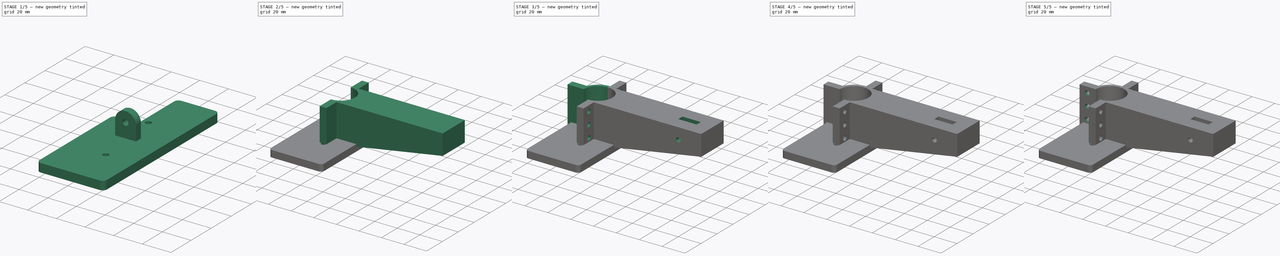
[diagram: build sequence overview — one tinted view per stage of 5, left to right]
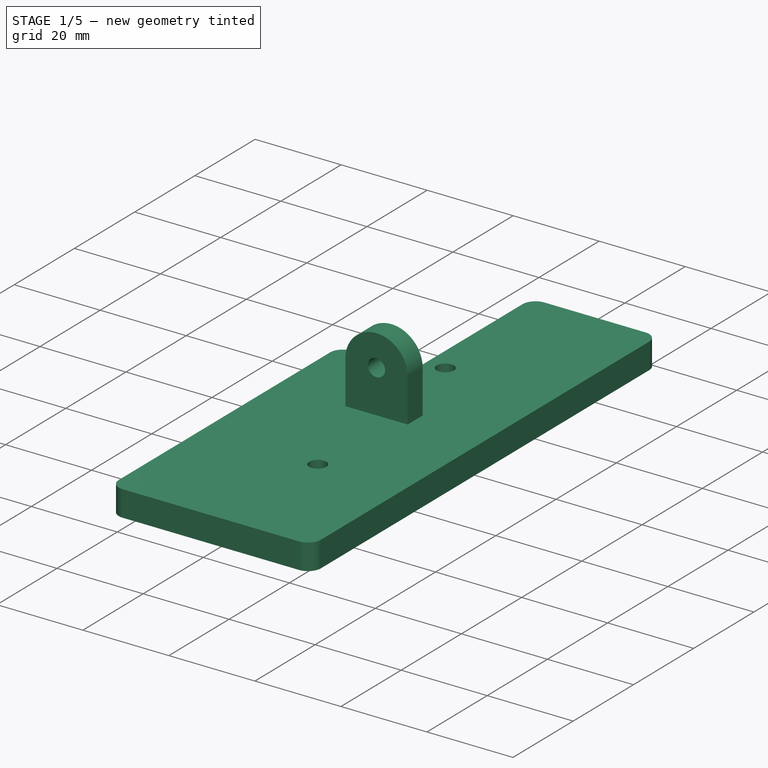
[diagram: stage 1 of 5 — iso view after this stage's code; geometry added in this stage tinted green]
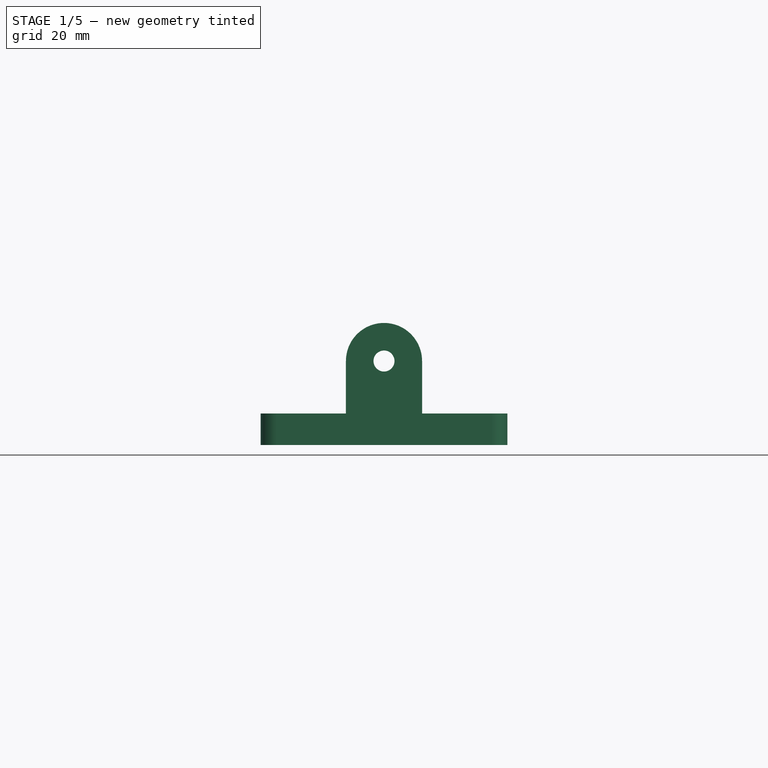
[diagram: stage 1 of 5 — front view after this stage's code; geometry added in this stage tinted green]
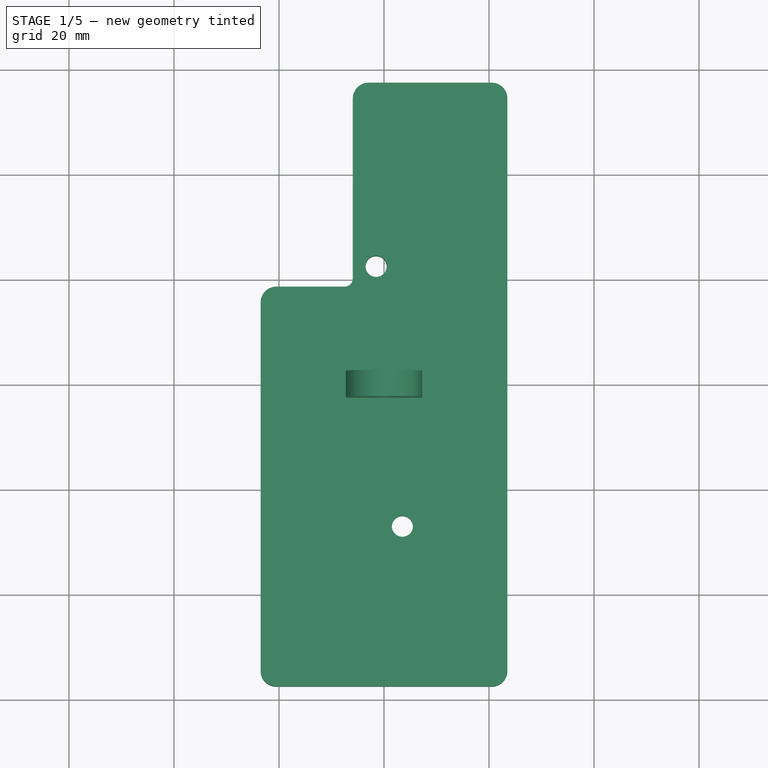
[diagram: stage 1 of 5 — top view after this stage's code; geometry added in this stage tinted green]
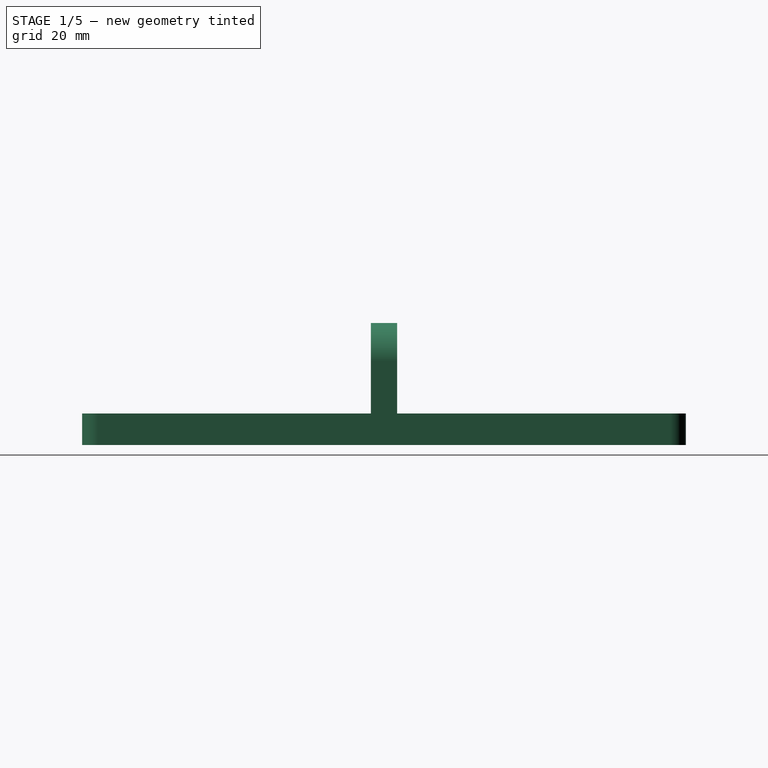
[diagram: stage 1 of 5 — right view after this stage's code; geometry added in this stage tinted green]
FCSTD DOCUMENT  (FreeCAD 0.20R29410 (Git))
Label: Kayak_Throttle_Mount_Version_3
License: All rights reserved
LicenseURL: http://en.wikipedia.org/wiki/All_rights_reserved
objects: PartDesign::Pocket×12, Sketcher::SketchObject×11, PartDesign::Body×4, PartDesign::Pad×4, PartDesign::CoordinateSystem×4, App::Part×3, PartDesign::LinearPattern×2, PartDesign::AdditiveLoft×1, PartDesign::Boolean×1, PartDesign::Fillet×1
note: 58 computed .brp shape members not serialized (recipe doc carries the construction recipe); baked Part::Feature solids carry a one-line shape summary decoded from their .brp

FEATURE [Sketcher::SketchObject] Sketch003
  FullyConstrained = true
  MapMode = 5
  Support = -> [XY_Plane004]
  sketch-geometry (10):
    g0: LineSegment StartX=-20.5 StartY=57.5 StartZ=0 EndX=20.5 EndY=57.5 EndZ=0
    g1: LineSegment StartX=23.5 StartY=54.5 StartZ=0 EndX=23.5 EndY=-54.5 EndZ=0
    g2: LineSegment StartX=20.5 StartY=-57.5 StartZ=0 EndX=-20.5 EndY=-57.5 EndZ=0
    g3: LineSegment StartX=-23.5 StartY=-54.5 StartZ=0 EndX=-23.5 EndY=54.5 EndZ=0
    g4: ArcOfCircle CenterX=-20.5 CenterY=54.5 CenterZ=0 NormalX=0 NormalY=0 NormalZ=1 AngleXU=0 Radius=3 StartAngle=1.5708 EndAngle=3.14159
    g5: ArcOfCircle CenterX=20.5 CenterY=54.5 CenterZ=0 NormalX=0 NormalY=0 NormalZ=1 AngleXU=0 Radius=3 StartAngle=0 EndAngle=1.5708
    g6: ArcOfCircle CenterX=20.5 CenterY=-54.5 CenterZ=0 NormalX=0 NormalY=0 NormalZ=1 AngleXU=0 Radius=3 StartAngle=4.71239 EndAngle=6.28319
    g7: ArcOfCircle CenterX=-20.5 CenterY=-54.5 CenterZ=0 NormalX=0 NormalY=0 NormalZ=1 AngleXU=0 Radius=3 StartAngle=3.14159 EndAngle=4.71239
    g8: Circle CenterX=-1.5 CenterY=22.5 CenterZ=0 NormalX=0 NormalY=0 NormalZ=1 AngleXU=0 Radius=2
    g9: Circle CenterX=3.5 CenterY=-27 CenterZ=0 NormalX=0 NormalY=0 NormalZ=1 AngleXU=0 Radius=2
  constraints (25):
    c: Horizontal(g0)
    c: Horizontal(g2)
    c: Vertical(g1)
    c: Vertical(g3)
    c: Tangent(g3,g4) = 1.5708
    c: Tangent(g0,g4) = 1.5708
    c: Tangent(g0,g5) = 1.5708
    c: Tangent(g1,g5) = 1.5708
    c: Tangent(g1,g6) = 1.5708
    c: Tangent(g2,g6) = 1.5708
    c: Tangent(g2,g7) = 1.5708
    c: Tangent(g3,g7) = 1.5708
    c: Equal(g4,g5)
    c: Equal(g5,g6)
    c: Equal(g6,g7)
    c: Radius(g5) = 3
    c: Symmetric(g0,g2,g-1)
    c: DistanceX(g3,g1) = 47
    c: DistanceY(g2,g0) = 115
    c: Radius(g9) = 2
    c: Radius(g8) = 2
    c: DistanceY(g9,g8) = 49.5
    c: DistanceX(g8,g1) = 25
    c: DistanceY(g2,g8) = 80
    c: DistanceX(g9,g1) = 20
FEATURE [PartDesign::Pad] Pad001
  Direction = (0,0,1)
  Length = 6
  Length2 = 10
  Profile = -> Sketch003
  ReferenceAxis = -> Sketch003 [N_Axis]
  Type = 0
FEATURE [Sketcher::SketchObject] Sketch004
  AttachmentOffset = pos=(0,6,0) rot=(0,0,1;3.14159rad)
  FullyConstrained = true
  MapMode = 5
  Placement = pos=(0,-1.3e-15,6) rot=(0,-0.707107,0.707107;3.14159rad)
  Support = -> [XZ_Plane004]
  sketch-geometry (5):
    g0: LineSegment StartX=-7.25 StartY=0 StartZ=0 EndX=-7.25 EndY=-10 EndZ=0
    g1: ArcOfCircle CenterX=0 CenterY=-10 CenterZ=0 NormalX=0 NormalY=0 NormalZ=1 AngleXU=0 Radius=7.25 StartAngle=3.14159 EndAngle=6.28319
    g2: LineSegment StartX=7.25 StartY=-10 StartZ=0 EndX=7.25 EndY=0 EndZ=0
    g3: LineSegment StartX=7.25 StartY=0 StartZ=0 EndX=-7.25 EndY=0 EndZ=0
    g4: Circle CenterX=0 CenterY=-10 CenterZ=0 NormalX=0 NormalY=0 NormalZ=1 AngleXU=0 Radius=2
  constraints (13):
    c: PointOnObject(g0,g-1)
    c: Vertical(g0)
    c: Tangent(g0,g1) = -1.5708
    c: Coincident(g1,g2)
    c: PointOnObject(g2,g-1)
    c: Vertical(g2)
    c: Coincident(g2,g3)
    c: Coincident(g3,g0)
    c: Symmetric(g0,g1,g-2)
    c: DistanceX(g0,g2) = 14.5
    c: DistanceY(g2,g2) = 10
    c: Coincident(g4,g1)
    c: Diameter(g4) = 4
FEATURE [PartDesign::Pad] Pad002
  BaseFeature = -> Pad001
  Direction = (0,-1,-2e-16)
  Length = 4.98
  Length2 = 10
  Midplane = true
  Profile = -> Sketch004
  ReferenceAxis = -> Sketch004 [N_Axis]
  Type = 0
FEATURE [PartDesign::Body] Body001  label="Body_Arm001"
  Group = -> [Sketch002,Pad,Boolean,Pocket,Sketch005,Pocket001,Sketch006,Pocket002,Sketch011,Pocket011,LinearPattern]
  Origin = -> Origin002
  Tip = -> LinearPattern
FEATURE [App::Part] Part  label="Part_Arm"
  Group = -> [Body001,LCS_Arm_Slot,LCS_Arm_Clamp]
  Origin = -> Origin
FEATURE [PartDesign::CoordinateSystem] LCS_Top_Plate
  AttacherType = Attacher::AttachEngine3D
  AttachmentOffset = pos=(0,0,0) rot=(0,1,0;1.5708rad)
  MapMode = 45
  Placement = pos=(-2.05769,-1.78329,16) rot=(0,0,1;4.40215rad)
  Support = -> [Pad002]
FEATURE [Sketcher::SketchObject] Sketch012
  AttachmentOffset = pos=(0,-1,0) rot=(0,0,1;0rad)
  FullyConstrained = false
  MapMode = 5
  Placement = pos=(0,-1,0) rot=(0,0,1;0rad)
  Support = -> [XY_Plane004]
  sketch-geometry (6):
    g0: LineSegment StartX=-25.37 StartY=59.32 StartZ=0 EndX=-5.94 EndY=59.32 EndZ=0
    g1: LineSegment StartX=-5.94 StartY=59.32 StartZ=0 EndX=-5.94 EndY=21.2071 EndZ=0
    g2: LineSegment StartX=-7.49707 StartY=19.65 StartZ=0 EndX=-23.59 EndY=19.65 EndZ=0
    g3: LineSegment StartX=-25.37 StartY=21.43 StartZ=0 EndX=-25.37 EndY=59.32 EndZ=0
    g4: ArcOfCircle CenterX=-23.59 CenterY=21.43 CenterZ=0 NormalX=0 NormalY=0 NormalZ=1 AngleXU=0 Radius=1.78 StartAngle=3.14159 EndAngle=4.71239
    g5: ArcOfCircle CenterX=-7.49707 CenterY=21.2071 CenterZ=0 NormalX=0 NormalY=0 NormalZ=1 AngleXU=0 Radius=1.55707 StartAngle=4.71239 EndAngle=6.28319
  constraints (12):
    c: Coincident(g0,g1)
    c: Coincident(g3,g0)
    c: Horizontal(g0)
    c: Horizontal(g2)
    c: Vertical(g1)
    c: Vertical(g3)
    c: DistanceX(g0,g0) = 19.43
    c: Tangent(g3,g4) = 1.5708
    c: Tangent(g2,g4) = 1.5708
    c: DistanceY(g3,g3) = 37.89
    c: Tangent(g2,g5) = 1.5708
    c: Tangent(g1,g5) = 1.5708
FEATURE [PartDesign::Pocket] Pocket012
  BaseFeature = -> Pad002
  Direction = (0,0,-1)
  Length = 6
  Length2 = 5
  Profile = -> Sketch012
  ReferenceAxis = -> Sketch012 [N_Axis]
  Reversed = true
  Type = 0
FEATURE [PartDesign::Fillet] Fillet
  Base = -> Pocket012 [Edge34,Edge2]
  BaseFeature = -> Pocket012
  Radius = 3
  SupportTransform = false
  UseAllEdges = false
FEATURE [PartDesign::Body] Body002  label="Body_Top_Plate"
  Group = -> [Sketch003,Pad001,Sketch004,Pad002,Sketch012,Pocket012,Fillet]
  Origin = -> Origin004
  Tip = -> Fillet
FEATURE [App::Part] Part001  label="Part_Top_Plate"
  Group = -> [Body002,LCS_Top_Plate]
  LabelDocUser = Kayak_Throttle_Mount
  LabelPartUser = PartTopPlate
  Origin = -> Origin003
  PadLengthUser = 5.0 
  ShapeLengthUser = 81.1239
  ShapeVolumeUser = 22.949 mm x 115.0 mm x 47.0 mm
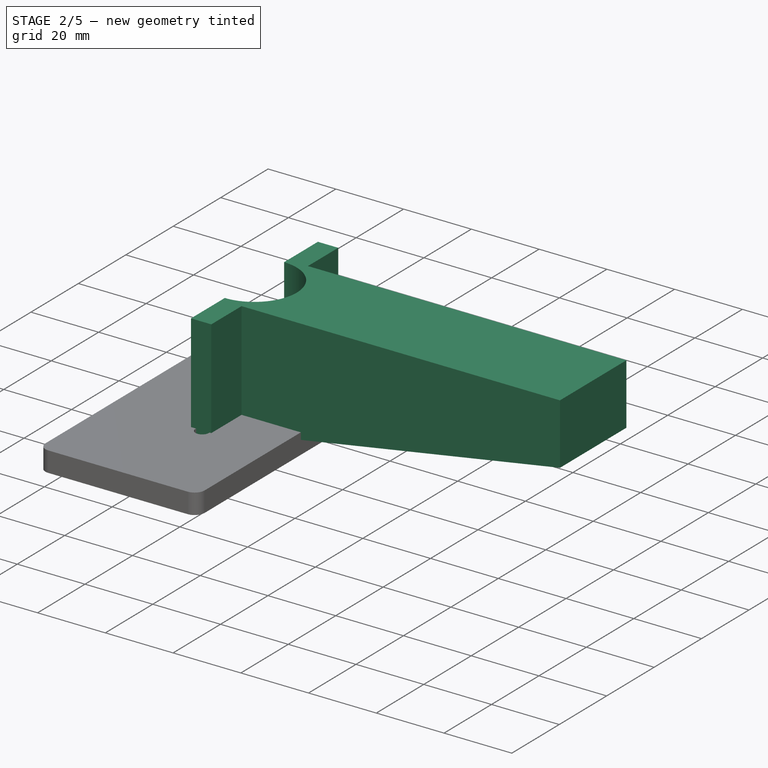
[diagram: stage 2 of 5 — iso view after this stage's code; geometry added in this stage tinted green]
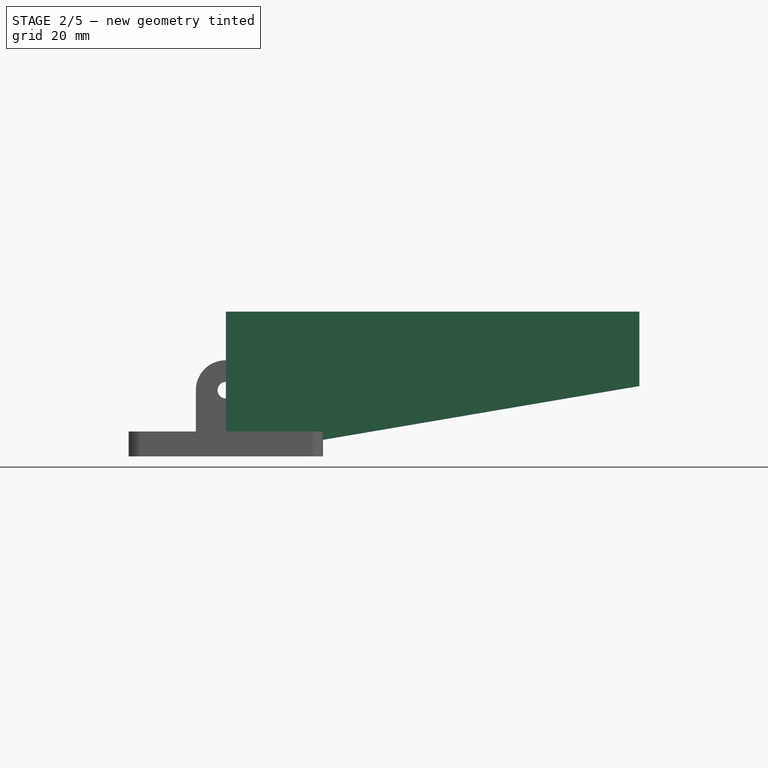
[diagram: stage 2 of 5 — front view after this stage's code; geometry added in this stage tinted green]
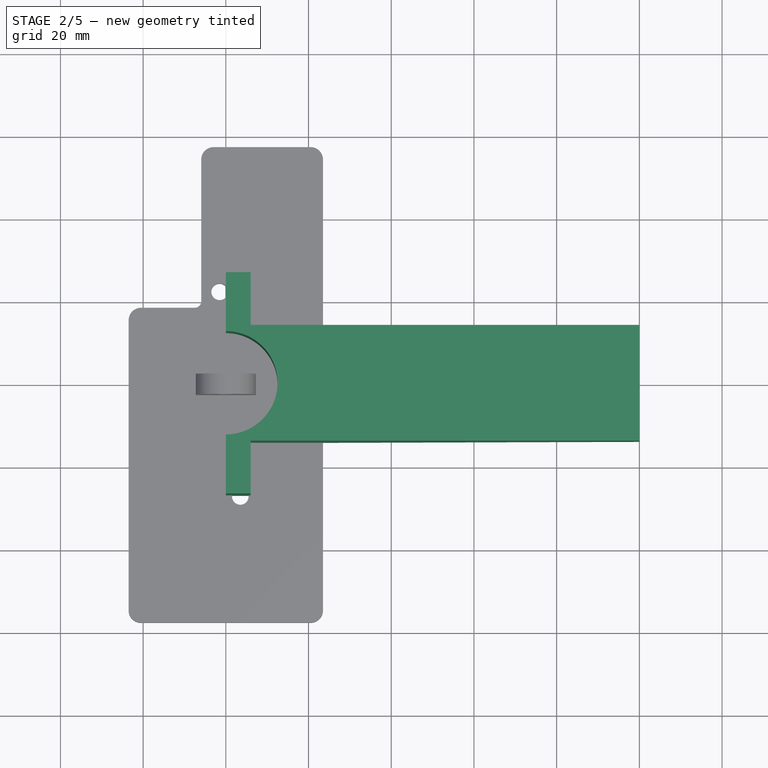
[diagram: stage 2 of 5 — top view after this stage's code; geometry added in this stage tinted green]
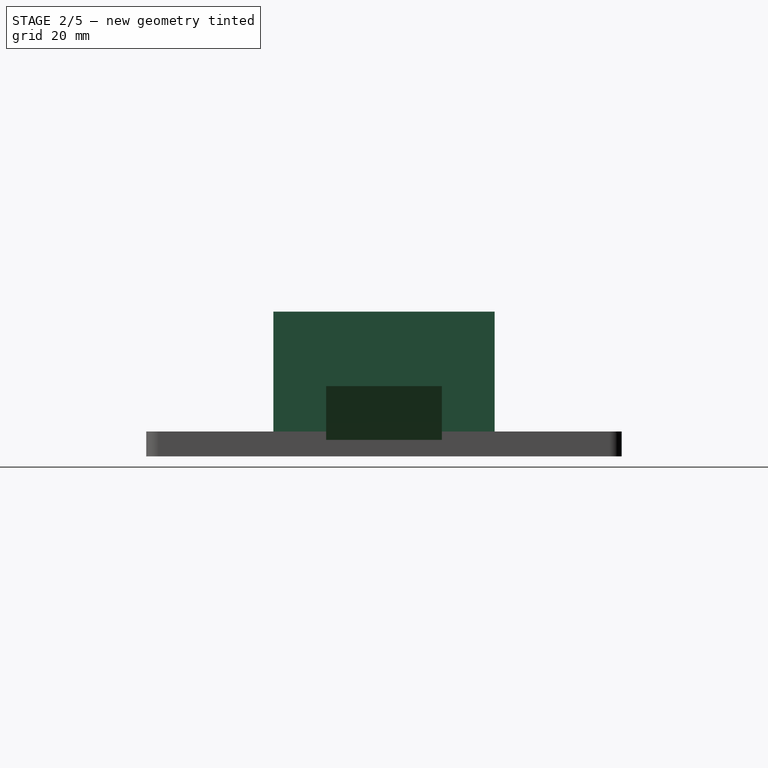
[diagram: stage 2 of 5 — right view after this stage's code; geometry added in this stage tinted green]
FEATURE [Sketcher::SketchObject] Sketch  label="Sketch_Arm_Big_End"
  FullyConstrained = true
  MapMode = 5
  Placement = pos=(0,0,0) rot=(0.57735,0.57735,0.57735;2.0944rad)
  Support = -> [YZ_Plane001]
  sketch-geometry (4):
    g0: LineSegment StartX=-14 StartY=35 StartZ=0 EndX=14 EndY=35 EndZ=0
    g1: LineSegment StartX=14 StartY=35 StartZ=0 EndX=14 EndY=0 EndZ=0
    g2: LineSegment StartX=14 StartY=0 StartZ=0 EndX=-14 EndY=0 EndZ=0
    g3: LineSegment StartX=-14 StartY=0 StartZ=0 EndX=-14 EndY=35 EndZ=0
  constraints (11):
    c: Coincident(g0,g1)
    c: Coincident(g1,g2)
    c: Coincident(g2,g3)
    c: Coincident(g3,g0)
    c: Horizontal(g0)
    c: Horizontal(g2)
    c: Vertical(g1)
    c: Vertical(g3)
    c: Symmetric(g2,g1,g-1)
    c: DistanceY(g1,g1) = 35
    c: DistanceX(g0,g0) = 28
FEATURE [Sketcher::SketchObject] Sketch001  label="Sketch_Arm_Little_End"
  AttachmentOffset = pos=(0,0,100) rot=(0,0,1;0rad)
  FullyConstrained = true
  MapMode = 5
  Placement = pos=(100,-2.22e-14,2.22e-14) rot=(0.57735,0.57735,0.57735;2.0944rad)
  Support = -> [YZ_Plane001]
  sketch-geometry (4):
    g0: LineSegment StartX=-14 StartY=35 StartZ=0 EndX=14 EndY=35 EndZ=0
    g1: LineSegment StartX=14 StartY=35 StartZ=0 EndX=14 EndY=17 EndZ=0
    g2: LineSegment StartX=14 StartY=17 StartZ=0 EndX=-14 EndY=17 EndZ=0
    g3: LineSegment StartX=-14 StartY=17 StartZ=0 EndX=-14 EndY=35 EndZ=0
  constraints (11):
    c: Coincident(g0,g1)
    c: Coincident(g1,g2)
    c: Coincident(g2,g3)
    c: Coincident(g3,g0)
    c: Horizontal(g0)
    c: Vertical(g1)
    c: Vertical(g3)
    c: DistanceX(g0,g0) = 28
    c: DistanceY(g1,g1) = 18
    c: DistanceY(g-1,g0) = 35
    c: Symmetric(g2,g1,g-2)
FEATURE [PartDesign::AdditiveLoft] AdditiveLoft
  Closed = false
  Placement = pos=(0,0,0) rot=(0.57735,0.57735,0.57735;2.0944rad)
  Profile = -> Sketch
  Ruled = false
  Sections = -> [Sketch001]
FEATURE [PartDesign::Body] Body  label="Body_Arm"
  Group = -> [Sketch,Sketch001,AdditiveLoft]
  Origin = -> Origin001
  Tip = -> AdditiveLoft
FEATURE [Sketcher::SketchObject] Sketch002
  AttachmentOffset = pos=(0,0,0) rot=(0,0,1;-1.5708rad)
  FullyConstrained = true
  MapMode = 5
  Placement = pos=(0,0,0) rot=(0,0,1;4.71239rad)
  Support = -> [XY_Plane002]
  sketch-geometry (8):
    g0: ArcOfCircle CenterX=0 CenterY=0 CenterZ=0 NormalX=0 NormalY=0 NormalZ=1 AngleXU=0 Radius=12.5 StartAngle=0 EndAngle=3.14159
    g1: ArcOfCircle CenterX=0 CenterY=0 CenterZ=0 NormalX=0 NormalY=0 NormalZ=1 AngleXU=0 Radius=15 StartAngle=0.411517 EndAngle=2.73008
    g2: LineSegment StartX=-26.75 StartY=6 StartZ=0 EndX=-13.7477 EndY=6 EndZ=0
    g3: LineSegment StartX=26.75 StartY=6 StartZ=0 EndX=26.75 EndY=1.8e-15 EndZ=0
    g4: LineSegment StartX=26.75 StartY=1.5e-15 StartZ=0 EndX=12.5 EndY=1.5e-15 EndZ=0
    g5: LineSegment StartX=-26.75 StartY=1.5e-15 StartZ=0 EndX=-26.75 EndY=6 EndZ=0
    g6: LineSegment StartX=13.7477 StartY=6 StartZ=0 EndX=26.75 EndY=6 EndZ=0
    g7: LineSegment StartX=-12.5 StartY=1.5e-15 StartZ=0 EndX=-26.75 EndY=1.5e-15 EndZ=0
  constraints (24):
    c: Coincident(g0,g-1)
    c: Diameter(g0) = 25
    c: Coincident(g1,g0)
    c: Diameter(g1) = 30
    c: Coincident(g6,g3)
    c: Coincident(g3,g4)
    c: Coincident(g7,g5)
    c: Coincident(g5,g2)
    c: Horizontal(g2)
    c: Horizontal(g4)
    c: Vertical(g3)
    c: Vertical(g5)
    c: PointOnObject(g3,g-1)
    c: DistanceX(g7,g4) = 53.5
    c: Coincident(g1,g2)
    c: Coincident(g1,g6)
    c: Coincident(g7,g0)
    c: Coincident(g4,g0)
    c: Equal(g2,g6)
    c: Horizontal(g6)
    c: Horizontal(g7)
    c: Equal(g5,g3)
    c: Horizontal(g0,g0)
    c: DistanceY(g3,g3) = 6
FEATURE [PartDesign::Pad] Pad
  Direction = (0,0,1)
  Length = 35
  Length2 = 10
  Profile = -> Sketch002
  ReferenceAxis = -> Sketch002 [N_Axis]
  Type = 0
FEATURE [PartDesign::Boolean] Boolean
  BaseFeature = -> Pad
  Group = -> [Body]
  Type = 0
FEATURE [PartDesign::Pocket] Pocket
  BaseFeature = -> Boolean
  Direction = (3e-16,-6e-16,-1)
  Length = 35
  Length2 = 5
  Profile = -> Boolean [Face22]
  Type = 0
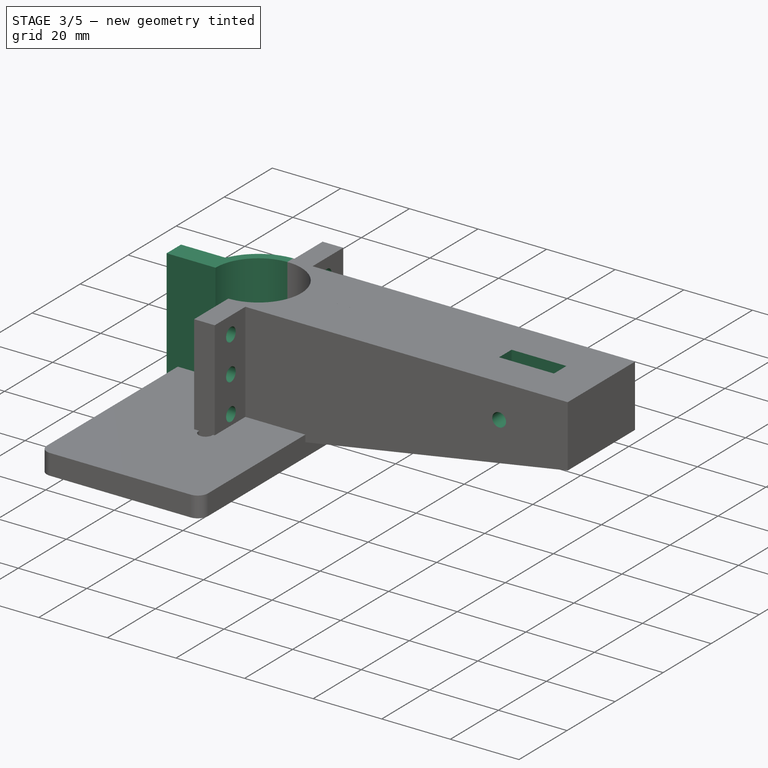
[diagram: stage 3 of 5 — iso view after this stage's code; geometry added in this stage tinted green]
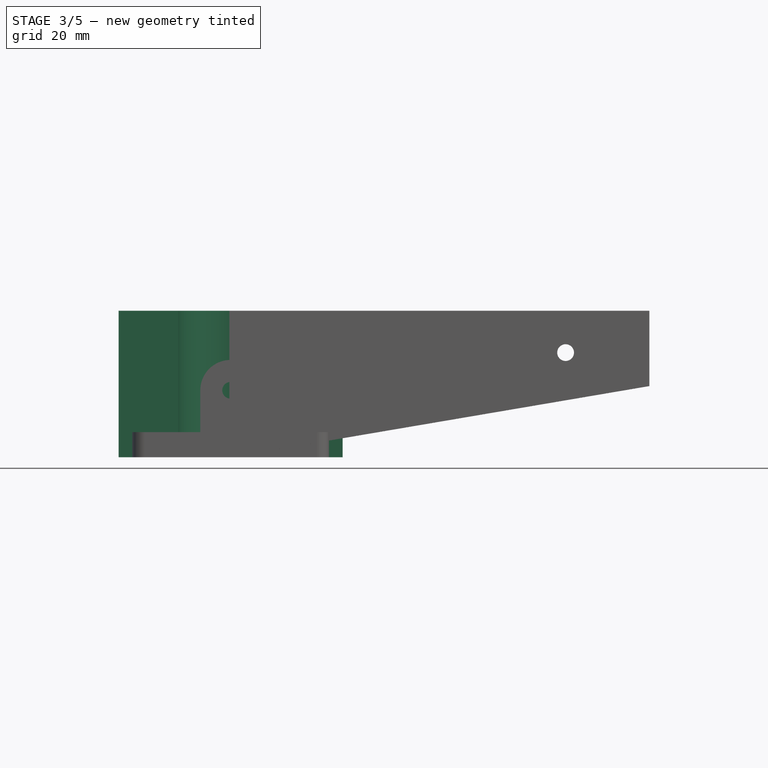
[diagram: stage 3 of 5 — front view after this stage's code; geometry added in this stage tinted green]
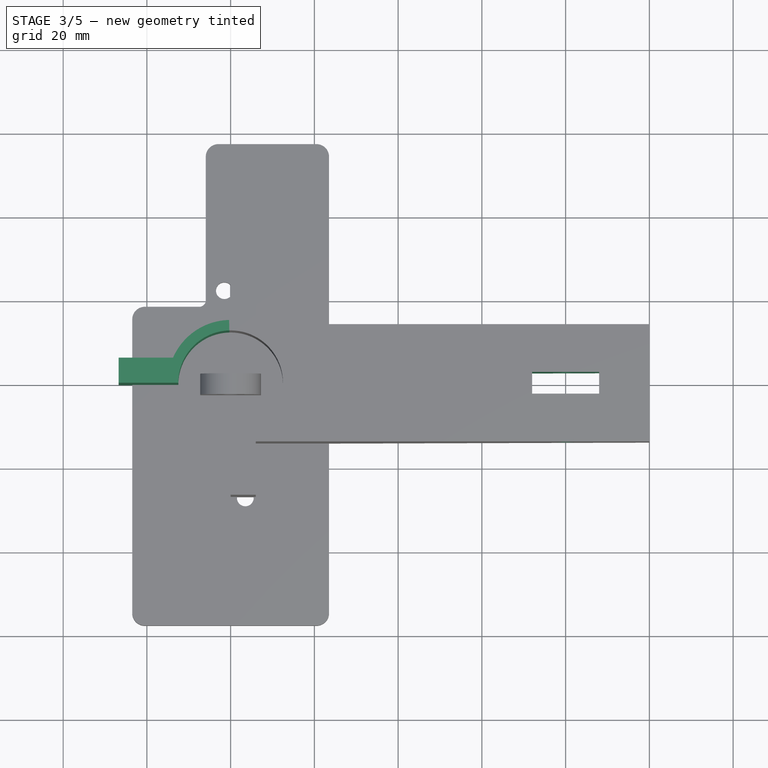
[diagram: stage 3 of 5 — top view after this stage's code; geometry added in this stage tinted green]
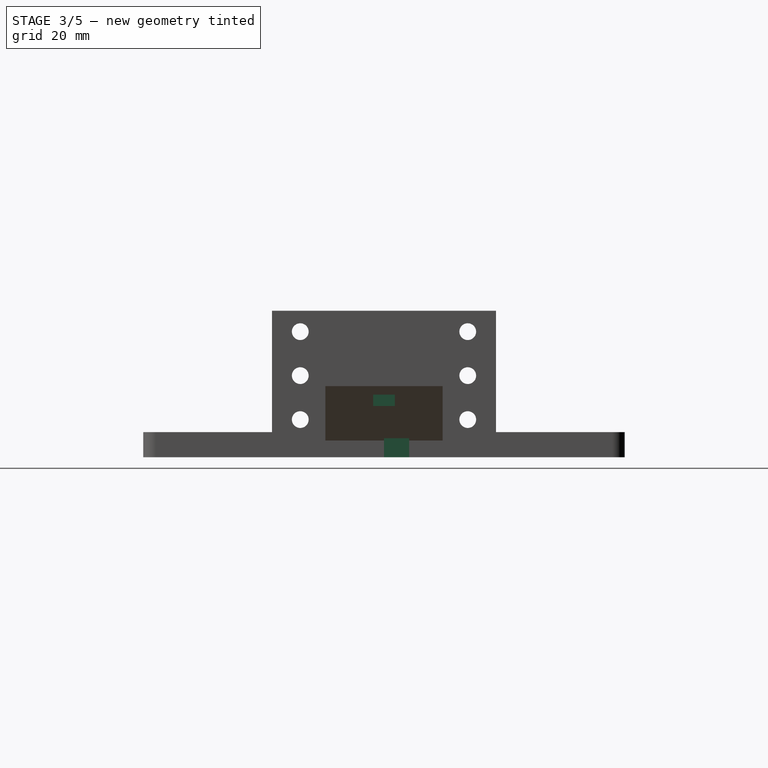
[diagram: stage 3 of 5 — right view after this stage's code; geometry added in this stage tinted green]
FEATURE [Sketcher::SketchObject] Sketch005
  FullyConstrained = true
  MapMode = 5
  Placement = pos=(0,0,0) rot=(1,0,0;1.5708rad)
  Support = -> [XZ_Plane002]
  sketch-geometry (1):
    g0: Circle CenterX=80 CenterY=25 CenterZ=0 NormalX=0 NormalY=0 NormalZ=1 AngleXU=0 Radius=2
  constraints (3):
    c: Diameter(g0) = 4
    c: DistanceY(g-1,g0) = 25
    c: DistanceX(g-1,g0) = 80
FEATURE [PartDesign::Pocket] Pocket001
  BaseFeature = -> Pocket
  Direction = (0,1,2e-16)
  Length = 5
  Length2 = 5
  Midplane = true
  Profile = -> Sketch005
  ReferenceAxis = -> Sketch005 [N_Axis]
  Type = 1
FEATURE [Sketcher::SketchObject] Sketch006
  FullyConstrained = true
  MapMode = 5
  Support = -> [XY_Plane002]
  sketch-geometry (4):
    g0: LineSegment StartX=72 StartY=2.6 StartZ=0 EndX=88 EndY=2.6 EndZ=0
    g1: LineSegment StartX=88 StartY=2.6 StartZ=0 EndX=88 EndY=-2.6 EndZ=0
    g2: LineSegment StartX=88 StartY=-2.6 StartZ=0 EndX=72 EndY=-2.6 EndZ=0
    g3: LineSegment StartX=72 StartY=-2.6 StartZ=0 EndX=72 EndY=2.6 EndZ=0
  constraints (11):
    c: Coincident(g0,g1)
    c: Coincident(g1,g2)
    c: Coincident(g2,g3)
    c: Coincident(g3,g0)
    c: Horizontal(g0)
    c: Horizontal(g2)
    c: Vertical(g1)
    c: Symmetric(g0,g2,g-1)
    c: DistanceX(g0,g0) = 16
    c: DistanceY(g1,g1) = 5.2
    c: DistanceX(g-1,g2) = 72
FEATURE [PartDesign::Pocket] Pocket002
  BaseFeature = -> Pocket001
  Direction = (0,0,-1)
  Length = 5
  Length2 = 5
  Profile = -> Sketch006
  ReferenceAxis = -> Sketch006 [N_Axis]
  Reversed = true
  Type = 1
FEATURE [Sketcher::SketchObject] Sketch009
  FullyConstrained = true
  MapMode = 5
  Support = -> [XY_Plane008]
  sketch-geometry (8):
    g0: ArcOfCircle CenterX=0 CenterY=0 CenterZ=0 NormalX=0 NormalY=0 NormalZ=1 AngleXU=0 Radius=12.5 StartAngle=0 EndAngle=3.14159
    g1: ArcOfCircle CenterX=0 CenterY=0 CenterZ=0 NormalX=0 NormalY=0 NormalZ=1 AngleXU=0 Radius=15 StartAngle=0.411517 EndAngle=2.73008
    g2: LineSegment StartX=-26.75 StartY=6 StartZ=0 EndX=-13.7477 EndY=6 EndZ=0
    g3: LineSegment StartX=26.75 StartY=6 StartZ=0 EndX=26.75 EndY=0 EndZ=0
    g4: LineSegment StartX=26.75 StartY=0 StartZ=0 EndX=12.5 EndY=0 EndZ=0
    g5: LineSegment StartX=-26.75 StartY=4e-16 StartZ=0 EndX=-26.75 EndY=6 EndZ=0
    g6: LineSegment StartX=13.7477 StartY=6 StartZ=0 EndX=26.75 EndY=6 EndZ=0
    g7: LineSegment StartX=-12.5 StartY=0 StartZ=0 EndX=-26.75 EndY=4e-16 EndZ=0
  constraints (24):
    c: Coincident(g0,g-1)
    c: Diameter(g0) = 25
    c: Coincident(g1,g0)
    c: Diameter(g1) = 30
    c: Coincident(g6,g3)
    c: Coincident(g3,g4)
    c: Coincident(g7,g5)
    c: Coincident(g5,g2)
    c: Horizontal(g2)
    c: Horizontal(g4)
    c: Vertical(g3)
    c: Vertical(g5)
    c: PointOnObject(g3,g-1)
    c: Coincident(g1,g2)
    c: Coincident(g6,g1)
    c: Coincident(g4,g0)
    c: Coincident(g7,g0)
    c: Equal(g3,g5)
    c: DistanceY(g3,g3) = 6
    c: Horizontal(g1,g1)
    c: Horizontal(g6)
    c: Equal(g2,g6)
    c: Horizontal(g0,g0)
    c: DistanceX(g2,g3) = 53.5
FEATURE [PartDesign::Pad] Pad004
  Direction = (0,0,1)
  Length = 35
  Length2 = 10
  Profile = -> Sketch009
  ReferenceAxis = -> Sketch009 [N_Axis]
  Type = 0
FEATURE [PartDesign::Body] Body004  label="Body_Single_Clamp_Revamp"
  Group = -> [Sketch009,Pad004,Sketch010,Pocket004,LinearPattern001,Pocket005,Pocket006,Pocket007,Pocket008,Pocket009,Pocket010]
  Origin = -> Origin008
  Tip = -> Pocket010
FEATURE [PartDesign::CoordinateSystem] LCS_Arm_Slot
  AttacherType = Attacher::AttachEngine3D
  AttachmentOffset = pos=(0,0,0) rot=(0,1,0;1.5708rad)
  MapMode = 45
  Placement = pos=(80,3e-16,25) rot=(-2.1e-05,0,1;3.14159rad)
  Support = -> [Pocket002]
FEATURE [PartDesign::CoordinateSystem] LCS_Arm_Clamp
  AttacherType = Attacher::AttachEngine3D
  MapMode = 1
  Placement = pos=(-2e-15,-12.5,35) rot=(0,0,1;0rad)
  Support = -> [Pocket002]
FEATURE [PartDesign::CoordinateSystem] LCS_Single_Clamp
  AttacherType = Attacher::AttachEngine3D
  MapMode = 1
  Placement = pos=(-12.5,1e-15,35) rot=(0,0,1;0rad)
  Support = -> [Pocket010]
FEATURE [App::Part] Part003  label="Part_Single_Clamp_Revamp"
  Group = -> [Body004,LCS_Single_Clamp]
  Origin = -> Origin007
FEATURE [Sketcher::SketchObject] Sketch011
  AttachmentOffset = pos=(0,0,6) rot=(0,0,1;0rad)
  FullyConstrained = true
  MapMode = 5
  Placement = pos=(6,-1.3e-15,1.3e-15) rot=(0.57735,0.57735,0.57735;2.0944rad)
  Support = -> [YZ_Plane002]
  sketch-geometry (2):
    g0: Circle CenterX=-20 CenterY=30 CenterZ=0 NormalX=0 NormalY=0 NormalZ=1 AngleXU=0 Radius=2
    g1: Circle CenterX=20 CenterY=30 CenterZ=0 NormalX=0 NormalY=0 NormalZ=1 AngleXU=0 Radius=2
  constraints (6):
    c: DistanceX(g0,g-1) = 20
    c: DistanceY(g-1,g0) = 30
    c: Diameter(g0) = 4
    c: DistanceX(g-1,g1) = 20
    c: DistanceY(g-1,g1) = 30
    c: Diameter(g1) = 4
FEATURE [PartDesign::Pocket] Pocket011
  BaseFeature = -> Pocket002
  Direction = (-1,2e-16,-3e-16)
  Length = 5
  Length2 = 5
  Profile = -> Sketch011
  ReferenceAxis = -> Sketch011 [N_Axis]
  Type = 1
FEATURE [PartDesign::LinearPattern] LinearPattern
  BaseFeature = -> Pocket011
  Direction = -> Z_Axis002
  Length = 21
  Occurrences = 3
  Originals = -> [Pocket011]
  Reversed = true
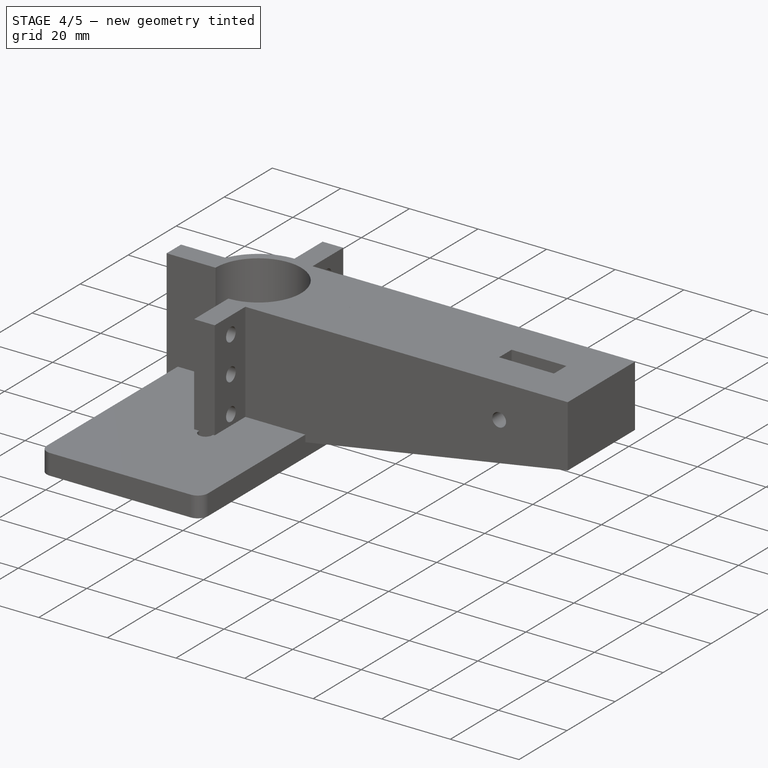
[diagram: stage 4 of 5 — iso view after this stage's code; geometry added in this stage tinted green]
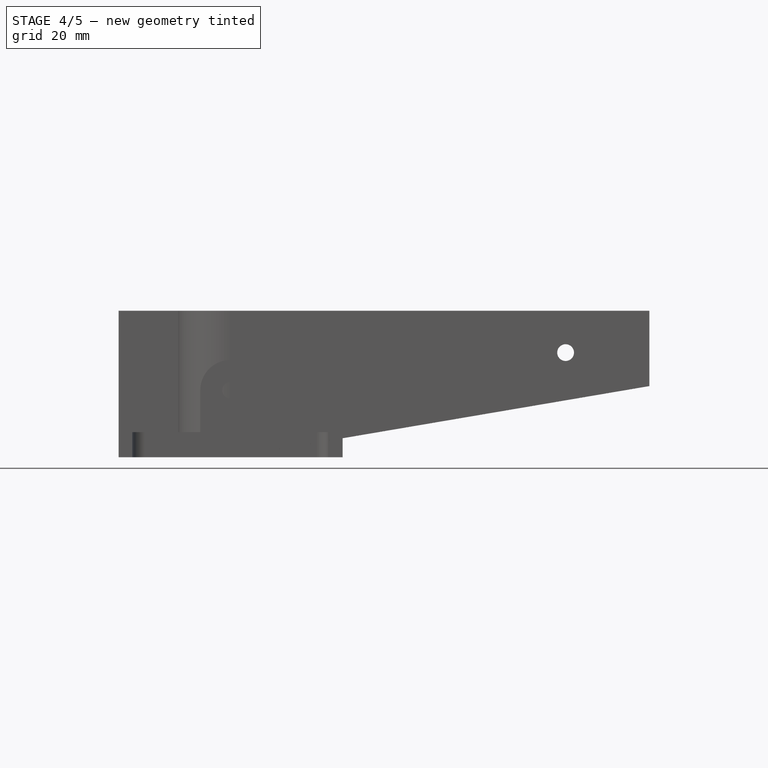
[diagram: stage 4 of 5 — front view after this stage's code; geometry added in this stage tinted green]
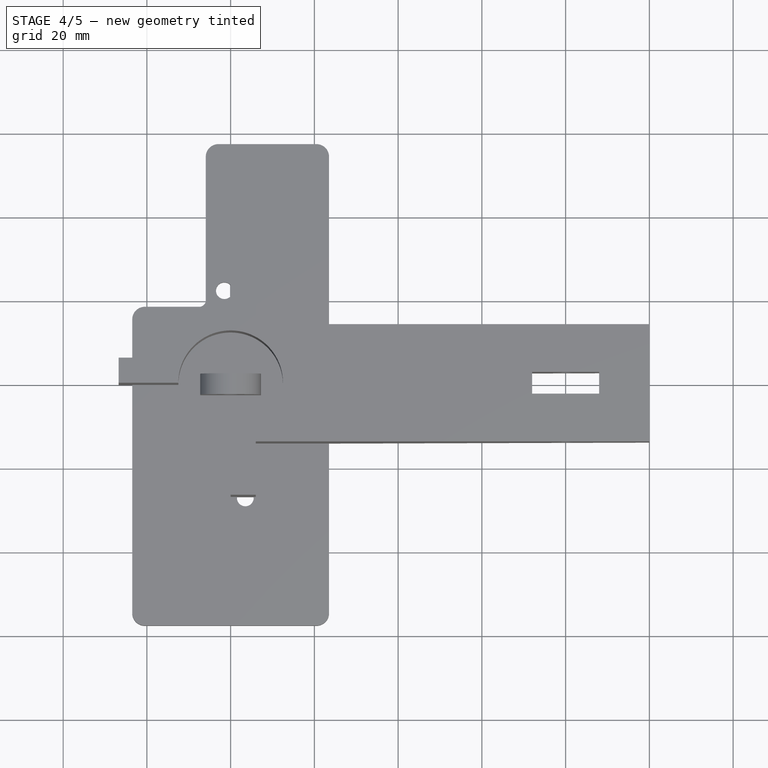
[diagram: stage 4 of 5 — top view after this stage's code; geometry added in this stage tinted green]
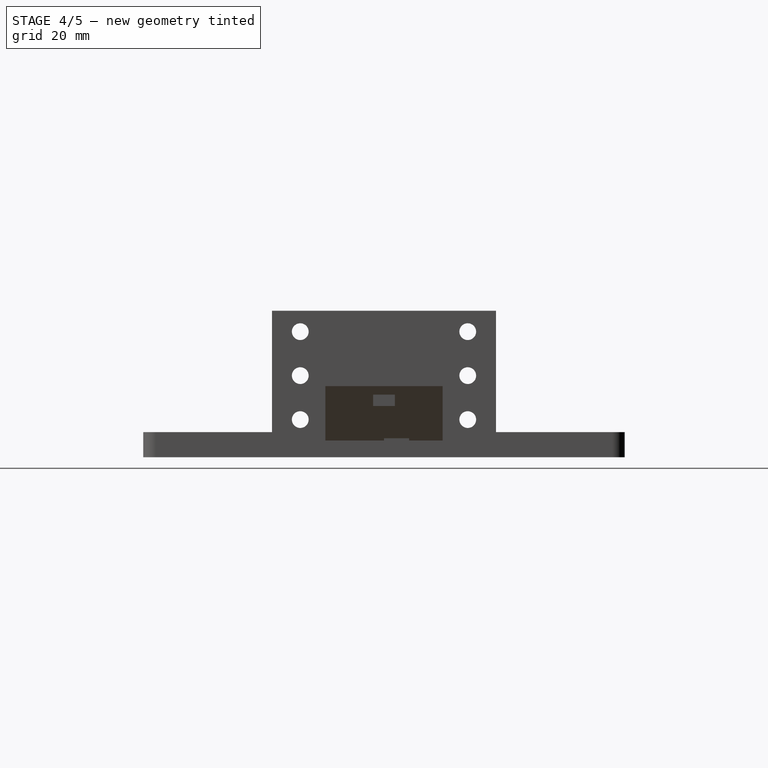
[diagram: stage 4 of 5 — right view after this stage's code; geometry added in this stage tinted green]
FEATURE [Sketcher::SketchObject] Sketch010
  AttachmentOffset = pos=(0,0,-6) rot=(0,0,1;0rad)
  FullyConstrained = true
  MapMode = 5
  Placement = pos=(0,6,1.3e-15) rot=(1,0,0;1.5708rad)
  Support = -> [XZ_Plane008]
  sketch-geometry (16):
    g0: Circle CenterX=-20 CenterY=30 CenterZ=0 NormalX=0 NormalY=0 NormalZ=1 AngleXU=0 Radius=2
    g1: LineSegment StartX=-16.5965 StartY=28.035 StartZ=0 EndX=-16.5965 EndY=31.965 EndZ=0
    g2: LineSegment StartX=-16.5965 StartY=31.965 StartZ=0 EndX=-20 EndY=33.93 EndZ=0
    g3: LineSegment StartX=-20 StartY=33.93 StartZ=0 EndX=-23.4035 EndY=31.965 EndZ=0
    g4: LineSegment StartX=-23.4035 StartY=31.965 StartZ=0 EndX=-23.4035 EndY=28.035 EndZ=0
    g5: LineSegment StartX=-23.4035 StartY=28.035 StartZ=0 EndX=-20 EndY=26.07 EndZ=0
    g6: LineSegment StartX=-20 StartY=26.07 StartZ=0 EndX=-16.5965 EndY=28.035 EndZ=0
    g7: Circle CenterX=-20 CenterY=30 CenterZ=0 NormalX=0 NormalY=0 NormalZ=1 AngleXU=0 Radius=3.93
    g8: Circle CenterX=20 CenterY=30 CenterZ=0 NormalX=0 NormalY=0 NormalZ=1 AngleXU=0 Radius=2
    g9: LineSegment StartX=23.4035 StartY=28.035 StartZ=0 EndX=23.4035 EndY=31.965 EndZ=0
    g10: LineSegment StartX=23.4035 StartY=31.965 StartZ=0 EndX=20 EndY=33.93 EndZ=0
    g11: LineSegment StartX=20 StartY=33.93 StartZ=0 EndX=16.5965 EndY=31.965 EndZ=0
    g12: LineSegment StartX=16.5965 StartY=31.965 StartZ=0 EndX=16.5965 EndY=28.035 EndZ=0
    g13: LineSegment StartX=16.5965 StartY=28.035 StartZ=0 EndX=20 EndY=26.07 EndZ=0
    g14: LineSegment StartX=20 StartY=26.07 StartZ=0 EndX=23.4035 EndY=28.035 EndZ=0
    g15: Circle CenterX=20 CenterY=30 CenterZ=0 NormalX=0 NormalY=0 NormalZ=1 AngleXU=0 Radius=3.93
  constraints (38):
    c: Diameter(g0) = 4
    c: DistanceY(g-1,g0) = 30
    c: DistanceX(g0,g-1) = 20
    c: Coincident(g1,g2)
    c: Coincident(g2,g3)
    c: Coincident(g3,g4)
    c: Coincident(g4,g5)
    c: Coincident(g5,g6)
    c: Coincident(g6,g1)
    c: Equal(g1, g2-g6) x5
    c: PointOnObject(g1,g7)
    c: PointOnObject(g2,g7)
    c: PointOnObject(g3,g7)
    c: PointOnObject(g4,g7)
    c: PointOnObject(g5,g7)
    c: PointOnObject(g6,g7)
    c: Coincident(g7,g0)
    c: DistanceY(g5,g2) = 7.86
    c: Vertical(g5,g2)
    c: Diameter(g8) = 4
    c: Coincident(g9,g10)
    c: Coincident(g10,g11)
    c: Coincident(g11,g12)
    c: Coincident(g12,g13)
    c: Coincident(g13,g14)
    c: Coincident(g14,g9)
    c: Equal(g9, g10-g14) x5
    c: PointOnObject(g9,g15)
    c: PointOnObject(g10,g15)
    c: PointOnObject(g11,g15)
    c: PointOnObject(g12,g15)
    c: PointOnObject(g13,g15)
    c: PointOnObject(g14,g15)
    c: Coincident(g15,g8)
    c: DistanceY(g13,g10) = 7.86
    c: Vertical(g10,g13)
    c: DistanceY(g-1,g8) = 30
    c: DistanceX(g-1,g8) = 20
FEATURE [PartDesign::Pocket] Pocket004
  BaseFeature = -> Pad004
  Direction = (0,1,2e-16)
  Length = 4
  Length2 = 5
  Profile = -> Sketch010
  ReferenceAxis = -> Sketch010 [N_Axis]
  Reversed = true
  Type = 0
FEATURE [PartDesign::LinearPattern] LinearPattern001
  BaseFeature = -> Pocket004
  Direction = -> Z_Axis008
  Length = 21
  Occurrences = 3
  Originals = -> [Pocket004]
  Reversed = true
FEATURE [PartDesign::Pocket] Pocket005
  BaseFeature = -> LinearPattern001
  Direction = (0,-1,0)
  Length = 5
  Length2 = 5
  Profile = -> LinearPattern001 [Face56]
  Type = 1
FEATURE [PartDesign::Pocket] Pocket006
  BaseFeature = -> Pocket005
  Direction = (0,-1,0)
  Length = 5
  Length2 = 5
  Profile = -> Pocket005 [Face56]
  Type = 1
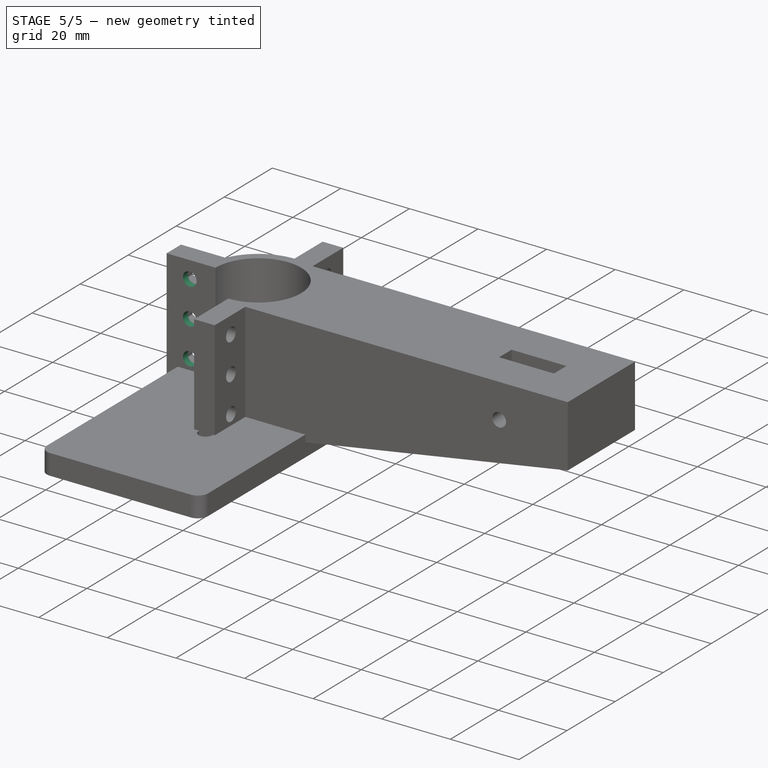
[diagram: stage 5 of 5 — iso view after this stage's code; geometry added in this stage tinted green]
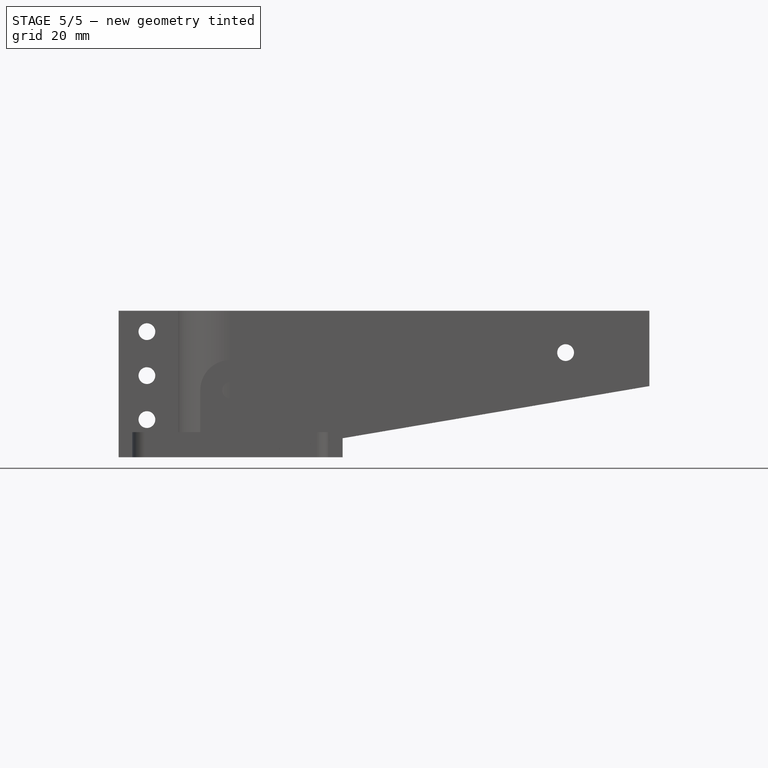
[diagram: stage 5 of 5 — front view after this stage's code; geometry added in this stage tinted green]
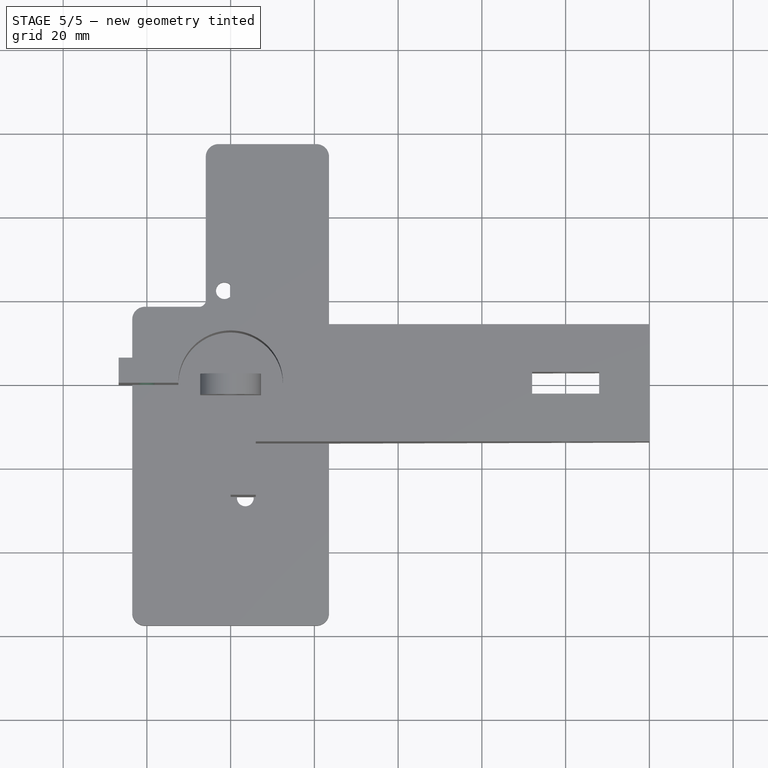
[diagram: stage 5 of 5 — top view after this stage's code; geometry added in this stage tinted green]
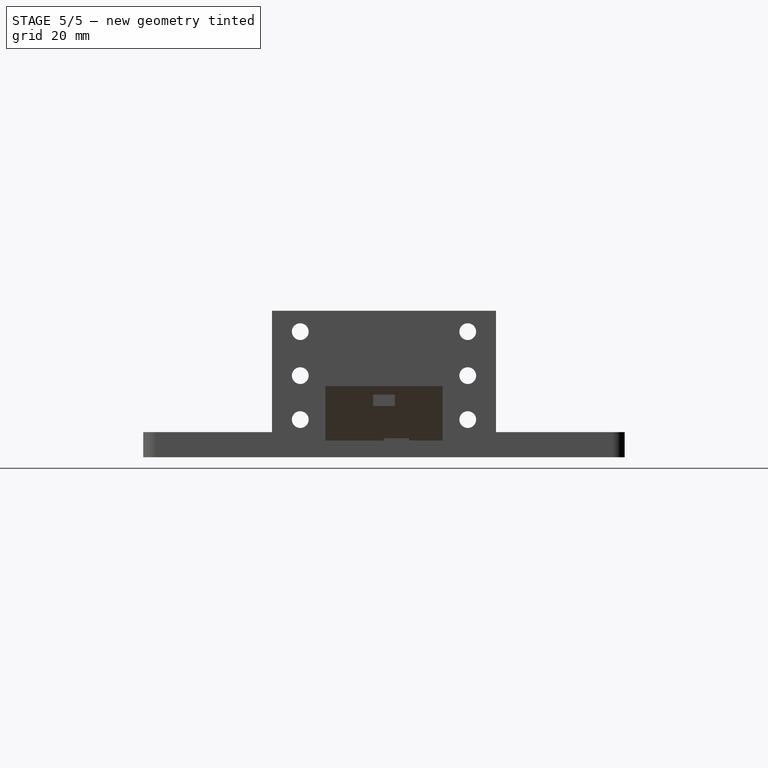
[diagram: stage 5 of 5 — right view after this stage's code; geometry added in this stage tinted green]
FEATURE [PartDesign::Pocket] Pocket007
  BaseFeature = -> Pocket006
  Direction = (0,-1,0)
  Length = 5
  Length2 = 5
  Profile = -> Pocket006 [Face56]
  Type = 1
FEATURE [PartDesign::Pocket] Pocket008
  BaseFeature = -> Pocket007
  Direction = (0,-1,0)
  Length = 5
  Length2 = 5
  Profile = -> Pocket007 [Face59]
  Type = 1
FEATURE [PartDesign::Pocket] Pocket009
  BaseFeature = -> Pocket008
  Direction = (0,-1,0)
  Length = 5
  Length2 = 5
  Profile = -> Pocket008 [Face59]
  Type = 1
FEATURE [PartDesign::Pocket] Pocket010
  BaseFeature = -> Pocket009
  Direction = (0,-1,0)
  Length = 5
  Length2 = 5
  Profile = -> Pocket009 [Face59]
  Type = 1
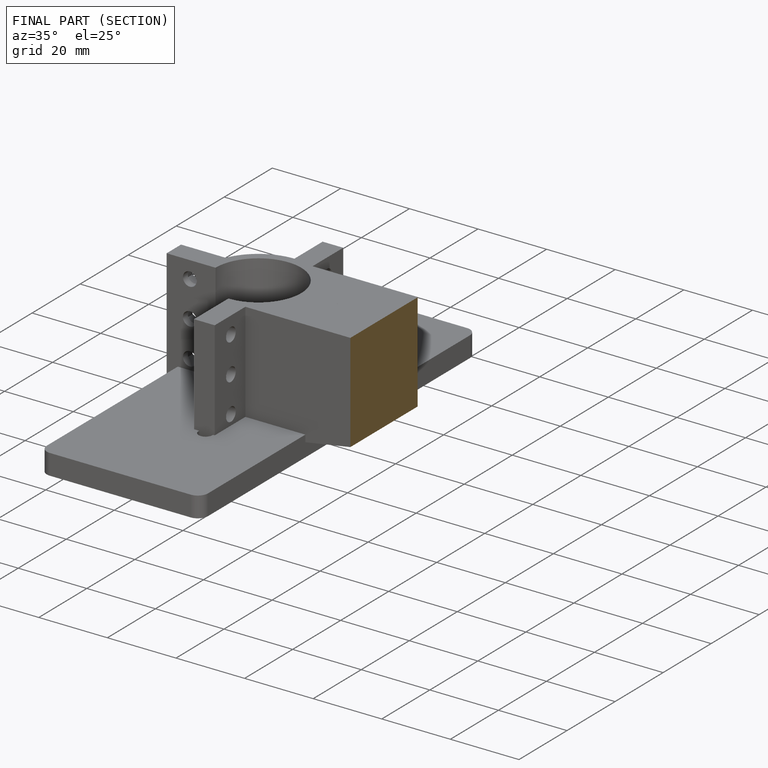
[diagram: finished part — half-section view (interior)]
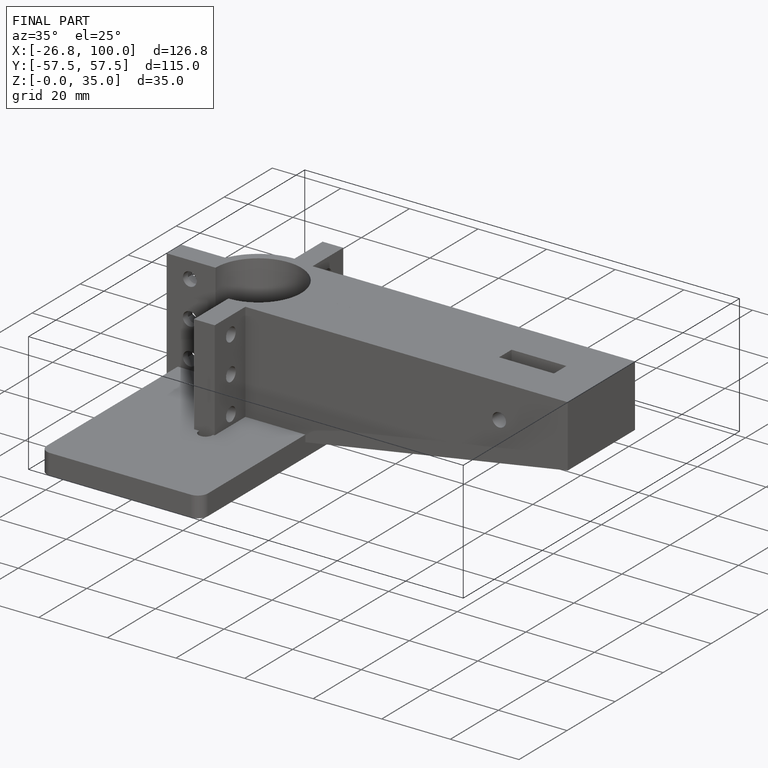
[diagram: finished part — iso view with bounding-box wireframe]
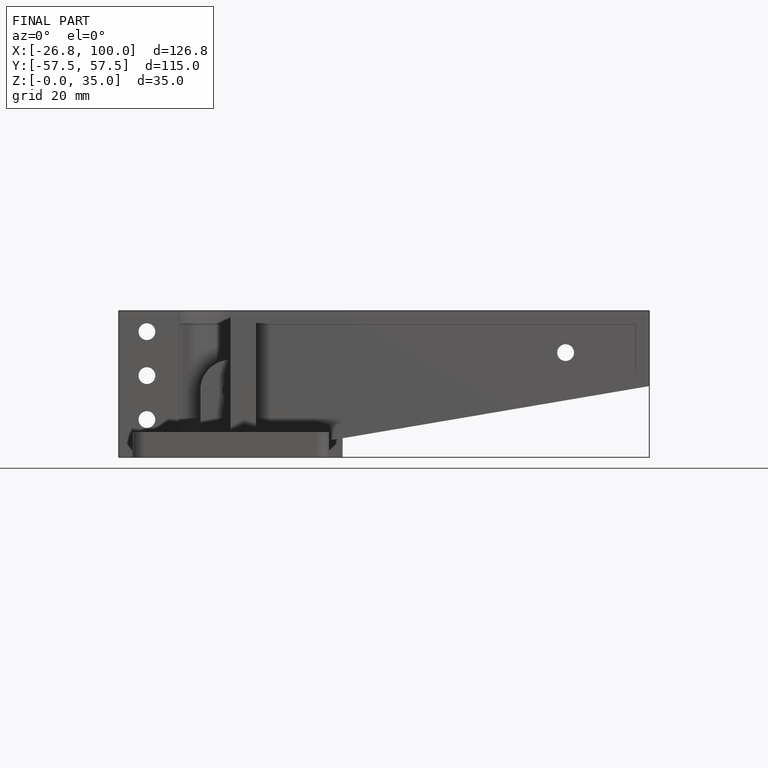
[diagram: finished part — front view with bounding-box wireframe]
